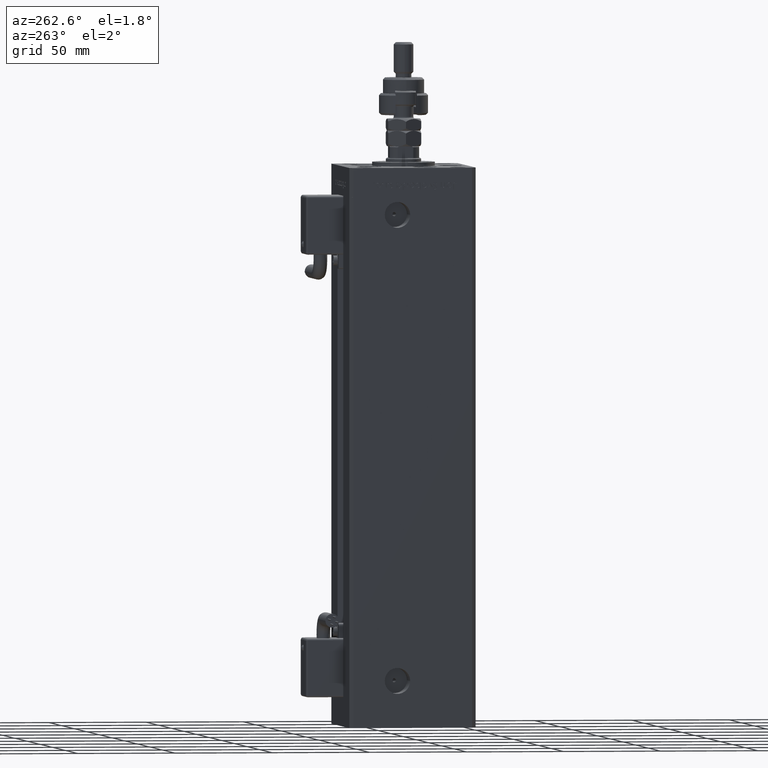
[diagram: clean part render]
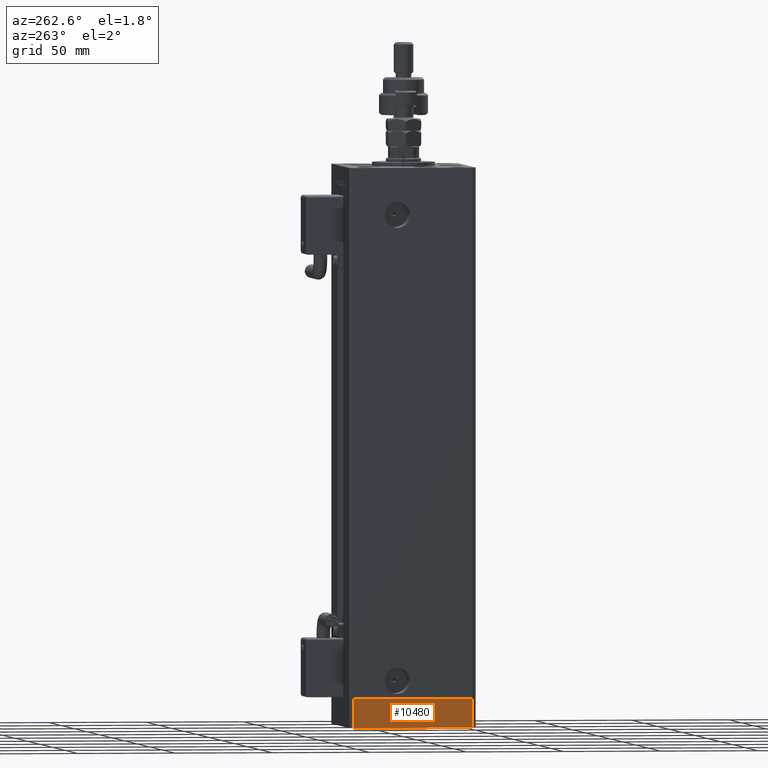
[diagram: same view with one face highlighted and labeled with its STEP entity id]
A machine part, auxiliary view. The second image highlights one B-rep face of the part: STEP entity #10480.
In plain terms, the highlighted planar face has unit normal (-1, 0, 0).
Its self-contained STEP definition (entity closure, byte-faithful):
#522 = EDGE_CURVE ( 'NONE', #4502, #37027, #48303, .T. ) ;
#4502 = VERTEX_POINT ( 'NONE', #4899 ) ;
#4566 = VERTEX_POINT ( 'NONE', #49767 ) ;
#4899 = CARTESIAN_POINT ( 'NONE',  ( 37.50000000000001421, -30.50000000000000711, -15.00000000000000000 ) ) ;
#5563 = CARTESIAN_POINT ( 'NONE',  ( 37.49999999999992184, 30.50000000000001066, -15.00000000000000000 ) ) ;
#6962 = VECTOR ( 'NONE', #42932, 1000.000000000000000 ) ;
#7856 = LINE ( 'NONE', #8139, #37844 ) ;
#8132 = DIRECTION ( 'NONE',  ( -1.478780668045802821E-15, 1.000000000000000000, 0.000000000000000000 ) ) ;
#8139 = CARTESIAN_POINT ( 'NONE',  ( 37.50000000000001421, -30.50000000000000711, -15.00000000000000000 ) ) ;
#8681 = ORIENTED_EDGE ( 'NONE', *, *, #10310, .T. ) ;
#10310 = EDGE_CURVE ( 'NONE', #37027, #4566, #45444, .T. ) ;
#10480 = ADVANCED_FACE ( 'NONE', ( #25174 ), #21365, .T. ) ;
#12004 = CARTESIAN_POINT ( 'NONE',  ( 37.50000000000001421, -30.50000000000000711, 0.000000000000000000 ) ) ;
#14078 = CARTESIAN_POINT ( 'NONE',  ( 37.49999999999992184, 30.50000000000001066, -15.00000000000000000 ) ) ;
#16522 = ORIENTED_EDGE ( 'NONE', *, *, #49076, .F. ) ;
#18178 = DIRECTION ( 'NONE',  ( 0.000000000000000000, 0.000000000000000000, 1.000000000000000000 ) ) ;
#21365 = PLANE ( 'NONE',  #35238 ) ;
#21706 = EDGE_LOOP ( 'NONE', ( #16522, #27361, #51050, #8681 ) ) ;
#25174 = FACE_OUTER_BOUND ( 'NONE', #21706, .T. ) ;
#26190 = LINE ( 'NONE', #47330, #6962 ) ;
#26564 = CARTESIAN_POINT ( 'NONE',  ( 37.50000000000001421, -30.50000000000000711, -15.00000000000000000 ) ) ;
#27361 = ORIENTED_EDGE ( 'NONE', *, *, #33990, .F. ) ;
#31491 = VECTOR ( 'NONE', #18178, 1000.000000000000000 ) ;
#33691 = DIRECTION ( 'NONE',  ( 1.000000000000000000, 1.478780668045803018E-15, -0.000000000000000000 ) ) ;
#33990 = EDGE_CURVE ( 'NONE', #4502, #53190, #7856, .T. ) ;
#34833 = DIRECTION ( 'NONE',  ( 0.000000000000000000, 0.000000000000000000, 1.000000000000000000 ) ) ;
#35238 = AXIS2_PLACEMENT_3D ( 'NONE', #43068, #33691, #47755 ) ;
#37027 = VERTEX_POINT ( 'NONE', #5563 ) ;
#37844 = VECTOR ( 'NONE', #34833, 1000.000000000000000 ) ;
#38842 = VECTOR ( 'NONE', #8132, 1000.000000000000000 ) ;
#42932 = DIRECTION ( 'NONE',  ( -1.478780668045802821E-15, 1.000000000000000000, 0.000000000000000000 ) ) ;
#43068 = CARTESIAN_POINT ( 'NONE',  ( 37.50000000000001421, -30.50000000000000711, -15.00000000000000000 ) ) ;
#45444 = LINE ( 'NONE', #14078, #31491 ) ;
#47330 = CARTESIAN_POINT ( 'NONE',  ( 37.50000000000001421, -30.50000000000000711, 0.000000000000000000 ) ) ;
#47755 = DIRECTION ( 'NONE',  ( -1.478780668045803018E-15, 1.000000000000000000, 0.000000000000000000 ) ) ;
#48303 = LINE ( 'NONE', #26564, #38842 ) ;
#49076 = EDGE_CURVE ( 'NONE', #53190, #4566, #26190, .T. ) ;
#49767 = CARTESIAN_POINT ( 'NONE',  ( 37.49999999999992184, 30.50000000000001066, 0.000000000000000000 ) ) ;
#51050 = ORIENTED_EDGE ( 'NONE', *, *, #522, .T. ) ;
#53190 = VERTEX_POINT ( 'NONE', #12004 ) ;